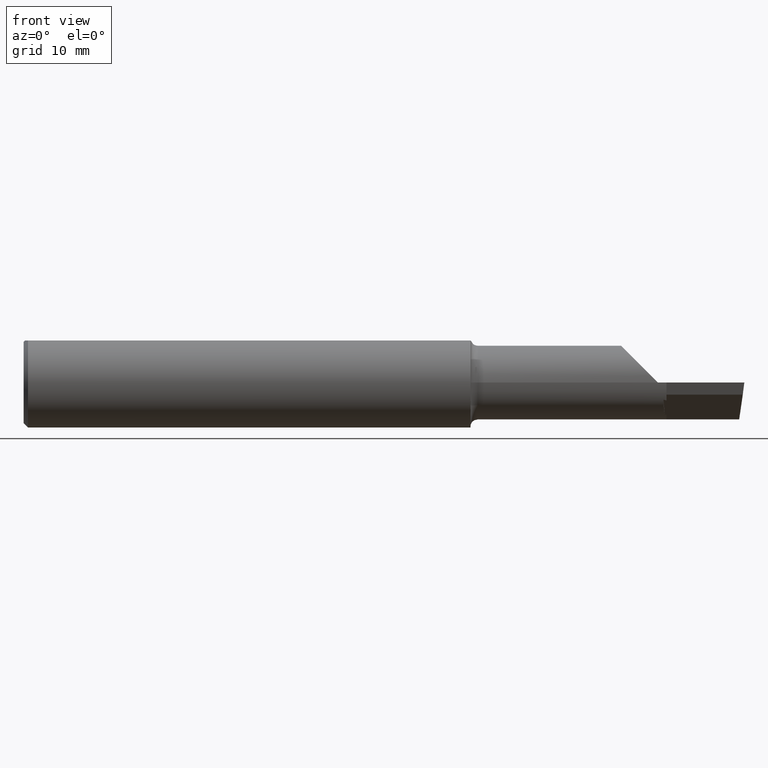
[diagram: clean part render]
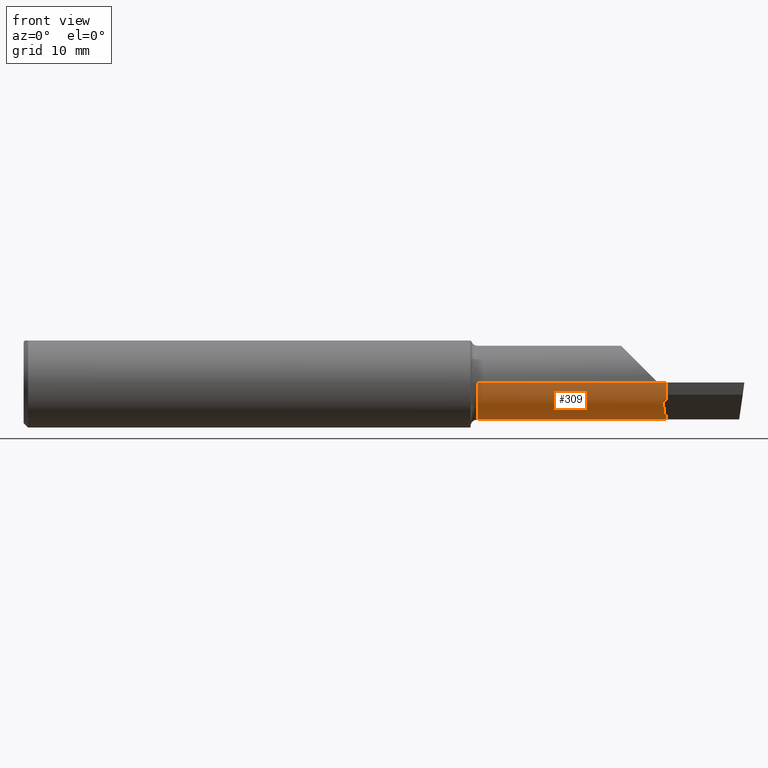
[diagram: same view with one face highlighted and labeled with its STEP entity id]
A machine part, front view. The second image highlights one B-rep face of the part: STEP entity #309.
In plain terms, the highlighted cylindrical surface (partial cylindrical patch) has radius 3.2487 mm, axis along (-1, 0, -0).
Its self-contained STEP definition (entity closure, byte-faithful):
#3 = CARTESIAN_POINT ( 'NONE',  ( 1.574999999999999956, 0.03899999999999998607, 0.000000000000000000 ) ) ;
#11 = VERTEX_POINT ( 'NONE', #381 ) ;
#14 = DIRECTION ( 'NONE',  ( -1.000000000000000000, 6.829619984160658046E-18, -0.000000000000000000 ) ) ;
#21 = VERTEX_POINT ( 'NONE', #162 ) ;
#23 = LINE ( 'NONE', #131, #385 ) ;
#35 = DIRECTION ( 'NONE',  ( -1.000000000000000000, -0.000000000000000000, -0.000000000000000000 ) ) ;
#36 = VERTEX_POINT ( 'NONE', #601 ) ;
#50 = DIRECTION ( 'NONE',  ( -1.000000000000000000, 6.829619984160658046E-18, -0.000000000000000000 ) ) ;
#53 = ORIENTED_EDGE ( 'NONE', *, *, #95, .T. ) ;
#58 = AXIS2_PLACEMENT_3D ( 'NONE', #327, #551, #210 ) ;
#64 = DIRECTION ( 'NONE',  ( 0.000000000000000000, -1.000000000000000000, 0.000000000000000000 ) ) ;
#95 = EDGE_CURVE ( 'NONE', #36, #373, #352, .T. ) ;
#97 = CARTESIAN_POINT ( 'NONE',  ( 2.219243579197730298, -0.07413921331227926736, -0.05964837307989698939 ) ) ;
#105 = ORIENTED_EDGE ( 'NONE', *, *, #391, .T. ) ;
#117 = DIRECTION ( 'NONE',  ( -1.000000000000000000, 6.829619984160658046E-18, -0.000000000000000000 ) ) ;
#131 = CARTESIAN_POINT ( 'NONE',  ( -8.735083959741170053E-19, -0.08890000000000000679, 3.155924005931204823E-16 ) ) ;
#133 = CARTESIAN_POINT ( 'NONE',  ( 2.500000000000000000, 0.03899999999999996525, -0.1279000000000000137 ) ) ;
#140 =( BOUNDED_CURVE ( )  B_SPLINE_CURVE ( 3, ( #668, #614, #179, #240 ),
 .UNSPECIFIED., .F., .F. ) 
 B_SPLINE_CURVE_WITH_KNOTS ( ( 4, 4 ),
 ( 5.219635427496930546, 5.798005679412931102 ),
 .UNSPECIFIED. ) 
 CURVE ( )  GEOMETRIC_REPRESENTATION_ITEM ( )  RATIONAL_B_SPLINE_CURVE ( ( 1.000000000000000000, 0.9723177149240063155, 0.9723177149240063155, 1.000000000000000000 ) ) 
 REPRESENTATION_ITEM ( '' )  );
#141 = ORIENTED_EDGE ( 'NONE', *, *, #325, .T. ) ;
#154 = CARTESIAN_POINT ( 'NONE',  ( 2.229999999999999982, -0.02439791101555218930, -0.1110815685830197769 ) ) ;
#161 = CARTESIAN_POINT ( 'NONE',  ( 2.480278310775617889, 0.03899999999999996525, -0.1279000000000000137 ) ) ;
#162 = CARTESIAN_POINT ( 'NONE',  ( 2.229999999999999982, 0.03899999999999996525, -0.1278999999999999859 ) ) ;
#172 = CYLINDRICAL_SURFACE ( 'NONE', #58, 0.1279000000000000137 ) ;
#178 = CARTESIAN_POINT ( 'NONE',  ( 1.902500000000000080, 0.1221769230769229331, -0.09715971113303932538 ) ) ;
#179 = CARTESIAN_POINT ( 'NONE',  ( 2.220366584553309597, -0.06247635677146574223, -0.08177012336190631059 ) ) ;
#183 = CARTESIAN_POINT ( 'NONE',  ( 2.224155181711048090, -0.02313027091166849208, -0.1117955251181489973 ) ) ;
#201 = ORIENTED_EDGE ( 'NONE', *, *, #606, .T. ) ;
#210 = DIRECTION ( 'NONE',  ( -6.829619984160658816E-18, -1.000000000000000000, 0.000000000000000000 ) ) ;
#212 = EDGE_CURVE ( 'NONE', #632, #21, #633, .T. ) ;
#216 = CARTESIAN_POINT ( 'NONE',  ( 2.481689713451043833, 0.1221769230769229331, -0.09715971113303932538 ) ) ;
#234 = CARTESIAN_POINT ( 'NONE',  ( 2.229999999999999982, -0.07288638121117571589, -0.06196650465749598685 ) ) ;
#238 = ORIENTED_EDGE ( 'NONE', *, *, #212, .T. ) ;
#240 = CARTESIAN_POINT ( 'NONE',  ( 2.219243579197730298, -0.07413921331227926736, -0.05964837307989698939 ) ) ;
#244 = CIRCLE ( 'NONE', #321, 0.1278999999999999859 ) ;
#245 = CARTESIAN_POINT ( 'NONE',  ( 1.574999999999999956, 0.1221769230769225167, -0.09715971113303972784 ) ) ;
#252 = CIRCLE ( 'NONE', #504, 0.1278999999999999859 ) ;
#258 = CARTESIAN_POINT ( 'NONE',  ( 2.229999999999999982, 0.03899999999999997913, 0.000000000000000000 ) ) ;
#263 = VECTOR ( 'NONE', #14, 39.37007874015748143 ) ;
#265 = CARTESIAN_POINT ( 'NONE',  ( 1.574999999999999956, -0.08890000000000007618, 0.000000000000000000 ) ) ;
#269 = CARTESIAN_POINT ( 'NONE',  ( 2.222955765532497630, -0.07372957003912065932, -0.06042537193620692998 ) ) ;
#281 = ORIENTED_EDGE ( 'NONE', *, *, #553, .F. ) ;
#292 = EDGE_LOOP ( 'NONE', ( #388, #474, #281, #350, #201, #238, #669, #141, #105, #53, #439 ) ) ;
#294 = CARTESIAN_POINT ( 'NONE',  ( 2.229999999999999982, 0.03899999999999997913, 0.000000000000000000 ) ) ;
#309 = ADVANCED_FACE ( 'NONE', ( #501 ), #172, .T. ) ;
#311 = DIRECTION ( 'NONE',  ( 0.000000000000000000, -1.000000000000000000, 0.000000000000000000 ) ) ;
#319 = DIRECTION ( 'NONE',  ( -1.000000000000000000, 6.829619984160658046E-18, -0.000000000000000000 ) ) ;
#321 = AXIS2_PLACEMENT_3D ( 'NONE', #258, #50, #311 ) ;
#325 = EDGE_CURVE ( 'NONE', #397, #365, #433, .T. ) ;
#326 = CARTESIAN_POINT ( 'NONE',  ( -8.735083959741483980E-19, -0.08890000000000002067, 0.000000000000000000 ) ) ;
#327 = CARTESIAN_POINT ( 'NONE',  ( 0.000000000000000000, 0.03899999999999999994, 0.000000000000000000 ) ) ;
#334 = AXIS2_PLACEMENT_3D ( 'NONE', #3, #478, #362 ) ;
#348 = VECTOR ( 'NONE', #35, 39.37007874015748143 ) ;
#350 = ORIENTED_EDGE ( 'NONE', *, *, #688, .F. ) ;
#352 =( BOUNDED_CURVE ( )  B_SPLINE_CURVE ( 3, ( #97, #269, #455, #234 ),
 .UNSPECIFIED., .F., .T. ) 
 B_SPLINE_CURVE_WITH_KNOTS ( ( 4, 4 ),
 ( 2.847793815029257214, 2.868396356574267170 ),
 .UNSPECIFIED. ) 
 CURVE ( )  GEOMETRIC_REPRESENTATION_ITEM ( )  RATIONAL_B_SPLINE_CURVE ( ( 1.000000000000000000, 0.9999646282529517372, 0.9999646282529517372, 1.000000000000000000 ) ) 
 REPRESENTATION_ITEM ( '' )  );
#356 = CARTESIAN_POINT ( 'NONE',  ( 2.480278310775617889, 0.03899999999999996525, -0.1279000000000000137 ) ) ;
#357 = VECTOR ( 'NONE', #319, 39.37007874015748143 ) ;
#362 = DIRECTION ( 'NONE',  ( 0.000000000000000000, -1.000000000000000000, 0.000000000000000000 ) ) ;
#364 = CARTESIAN_POINT ( 'NONE',  ( 2.228090435553064186, -0.02397672015612767327, -0.1113219560835474464 ) ) ;
#365 = VERTEX_POINT ( 'NONE', #569 ) ;
#373 = VERTEX_POINT ( 'NONE', #517 ) ;
#381 = CARTESIAN_POINT ( 'NONE',  ( 2.200000000000000178, -0.08890000000000010394, 9.797174393178826150E-17 ) ) ;
#385 = VECTOR ( 'NONE', #399, 39.37007874015748143 ) ;
#388 = ORIENTED_EDGE ( 'NONE', *, *, #464, .F. ) ;
#391 = EDGE_CURVE ( 'NONE', #365, #36, #140, .T. ) ;
#397 = VERTEX_POINT ( 'NONE', #628 ) ;
#399 = DIRECTION ( 'NONE',  ( 1.000000000000000000, -6.829619984160658046E-18, 0.000000000000000000 ) ) ;
#410 = VERTEX_POINT ( 'NONE', #245 ) ;
#422 = CIRCLE ( 'NONE', #334, 0.1279000000000000414 ) ;
#433 =( BOUNDED_CURVE ( )  B_SPLINE_CURVE ( 3, ( #154, #364, #590, #183 ),
 .UNSPECIFIED., .F., .T. ) 
 B_SPLINE_CURVE_WITH_KNOTS ( ( 4, 4 ),
 ( 3.414788950605318174, 3.426164066945257769 ),
 .UNSPECIFIED. ) 
 CURVE ( )  GEOMETRIC_REPRESENTATION_ITEM ( )  RATIONAL_B_SPLINE_CURVE ( ( 1.000000000000000000, 0.9999892172564213144, 0.9999892172564213144, 1.000000000000000000 ) ) 
 REPRESENTATION_ITEM ( '' )  );
#439 = ORIENTED_EDGE ( 'NONE', *, *, #489, .T. ) ;
#444 = LINE ( 'NONE', #178, #357 ) ;
#455 = CARTESIAN_POINT ( 'NONE',  ( 2.226541365962205532, -0.07331194456661026260, -0.06119810979516134009 ) ) ;
#464 = EDGE_CURVE ( 'NONE', #11, #624, #23, .T. ) ;
#474 = ORIENTED_EDGE ( 'NONE', *, *, #671, .T. ) ;
#478 = DIRECTION ( 'NONE',  ( -1.000000000000000000, 6.829619984160658046E-18, -0.000000000000000000 ) ) ;
#489 = EDGE_CURVE ( 'NONE', #373, #624, #252, .T. ) ;
#501 = FACE_OUTER_BOUND ( 'NONE', #292, .T. ) ;
#504 = AXIS2_PLACEMENT_3D ( 'NONE', #294, #117, #64 ) ;
#508 = CARTESIAN_POINT ( 'NONE',  ( 2.481689713451043833, 0.1221769230769229331, -0.09715971113303932538 ) ) ;
#517 = CARTESIAN_POINT ( 'NONE',  ( 2.229999999999999982, -0.07288638121117571589, -0.06196650465749598685 ) ) ;
#529 = EDGE_CURVE ( 'NONE', #21, #397, #244, .T. ) ;
#531 = CARTESIAN_POINT ( 'NONE',  ( 2.479452310584073782, 0.06983316589608457026, -0.1279000000000000137 ) ) ;
#539 = CARTESIAN_POINT ( 'NONE',  ( 2.479943065675275005, 0.09875439382140567546, -0.1172113754642092748 ) ) ;
#551 = DIRECTION ( 'NONE',  ( -1.000000000000000000, 6.829619984160658046E-18, -0.000000000000000000 ) ) ;
#553 = EDGE_CURVE ( 'NONE', #410, #618, #422, .T. ) ;
#569 = CARTESIAN_POINT ( 'NONE',  ( 2.224155181711048090, -0.02313027091166849208, -0.1117955251181489973 ) ) ;
#577 =( BOUNDED_CURVE ( )  B_SPLINE_CURVE ( 3, ( #216, #539, #531, #356 ),
 .UNSPECIFIED., .F., .T. ) 
 B_SPLINE_CURVE_WITH_KNOTS ( ( 4, 4 ),
 ( 5.797683689972068954, 6.505699533271590340 ),
 .UNSPECIFIED. ) 
 CURVE ( )  GEOMETRIC_REPRESENTATION_ITEM ( )  RATIONAL_B_SPLINE_CURVE ( ( 1.000000000000000000, 0.9586605761426441052, 0.9586605761426441052, 1.000000000000000000 ) ) 
 REPRESENTATION_ITEM ( '' )  );
#585 = CARTESIAN_POINT ( 'NONE',  ( 2.229999999999999982, -0.08890000000000000679, 0.000000000000000000 ) ) ;
#590 = CARTESIAN_POINT ( 'NONE',  ( 2.226142141782128103, -0.02355416889857124205, -0.1115599441614216064 ) ) ;
#601 = CARTESIAN_POINT ( 'NONE',  ( 2.219243579197730298, -0.07413921331227926736, -0.05964837307989698939 ) ) ;
#606 = EDGE_CURVE ( 'NONE', #698, #632, #577, .T. ) ;
#614 = CARTESIAN_POINT ( 'NONE',  ( 2.222050397172007141, -0.04498929411773994191, -0.09964739099361785701 ) ) ;
#618 = VERTEX_POINT ( 'NONE', #265 ) ;
#624 = VERTEX_POINT ( 'NONE', #585 ) ;
#628 = CARTESIAN_POINT ( 'NONE',  ( 2.229999999999999982, -0.02439791101555218930, -0.1110815685830197769 ) ) ;
#632 = VERTEX_POINT ( 'NONE', #161 ) ;
#633 = LINE ( 'NONE', #133, #348 ) ;
#668 = CARTESIAN_POINT ( 'NONE',  ( 2.224155181711048090, -0.02313027091166849208, -0.1117955251181489973 ) ) ;
#669 = ORIENTED_EDGE ( 'NONE', *, *, #529, .T. ) ;
#670 = LINE ( 'NONE', #326, #263 ) ;
#671 = EDGE_CURVE ( 'NONE', #11, #618, #670, .T. ) ;
#688 = EDGE_CURVE ( 'NONE', #698, #410, #444, .T. ) ;
#698 = VERTEX_POINT ( 'NONE', #508 ) ;